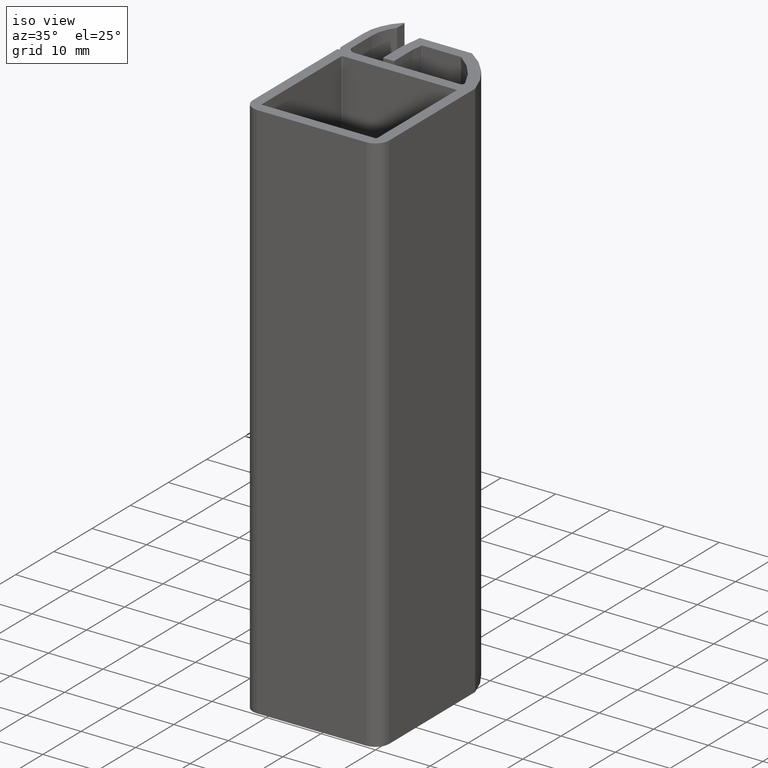
[diagram: clean part render]
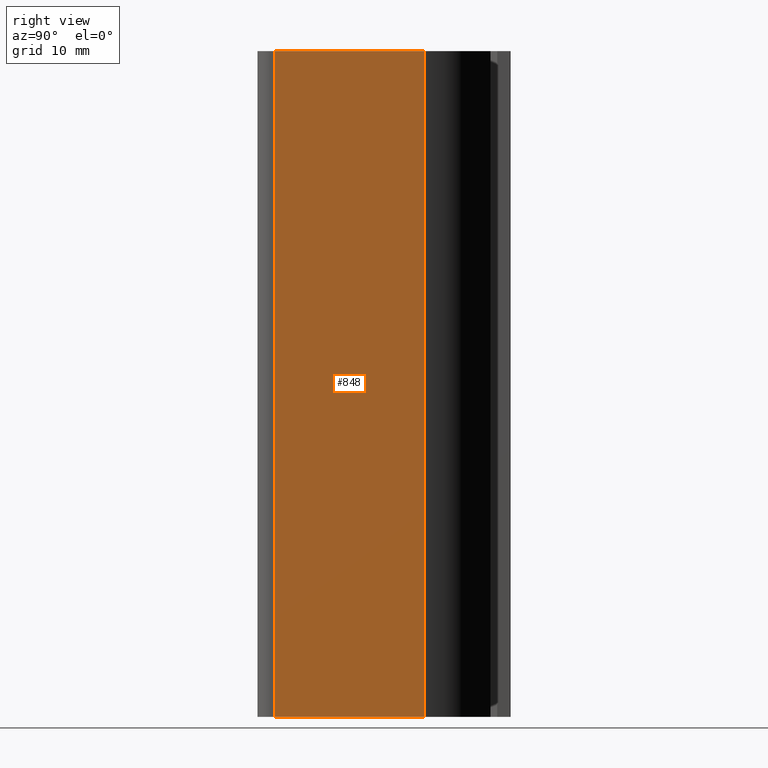
[diagram: tour spotlight — one face highlighted and labeled with its STEP entity id]
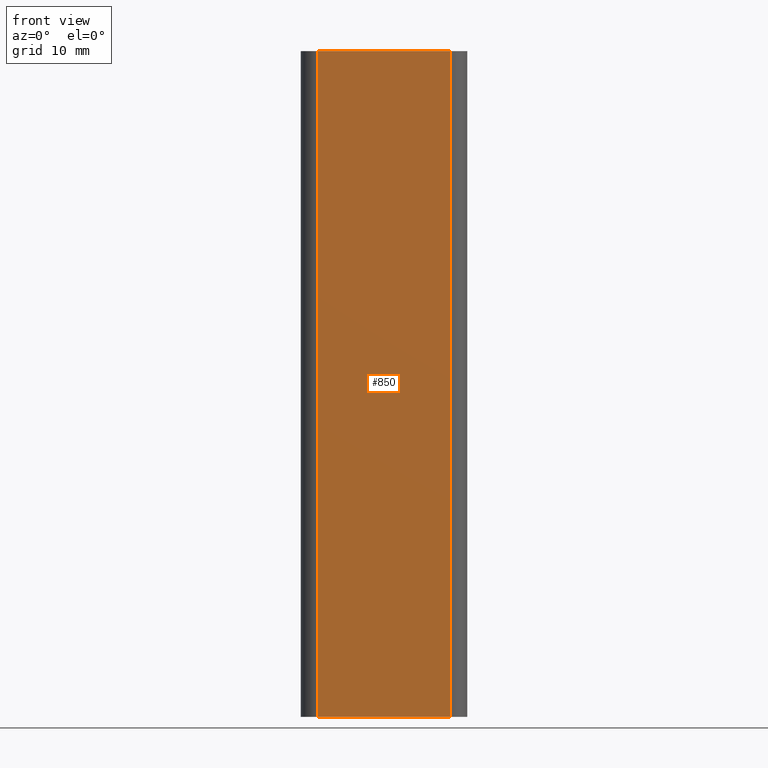
[diagram: tour spotlight — one face highlighted and labeled with its STEP entity id]
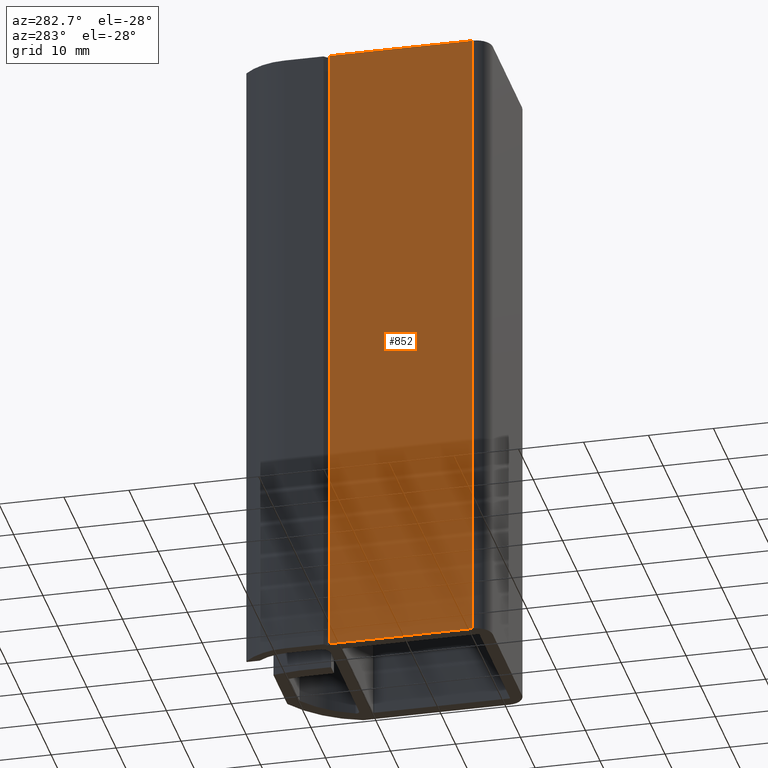
[diagram: tour spotlight — one face highlighted and labeled with its STEP entity id]
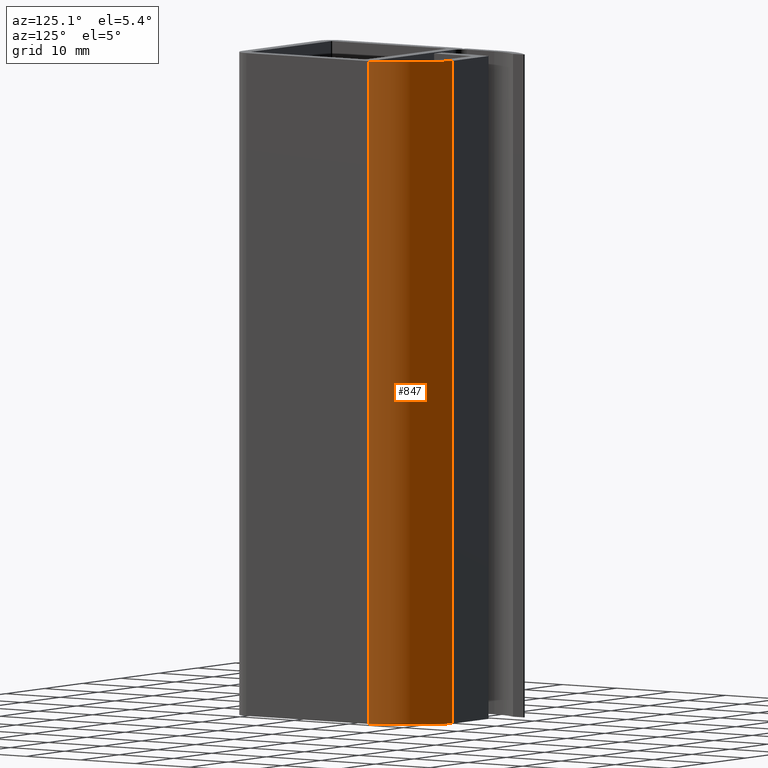
[diagram: tour spotlight — one face highlighted and labeled with its STEP entity id]
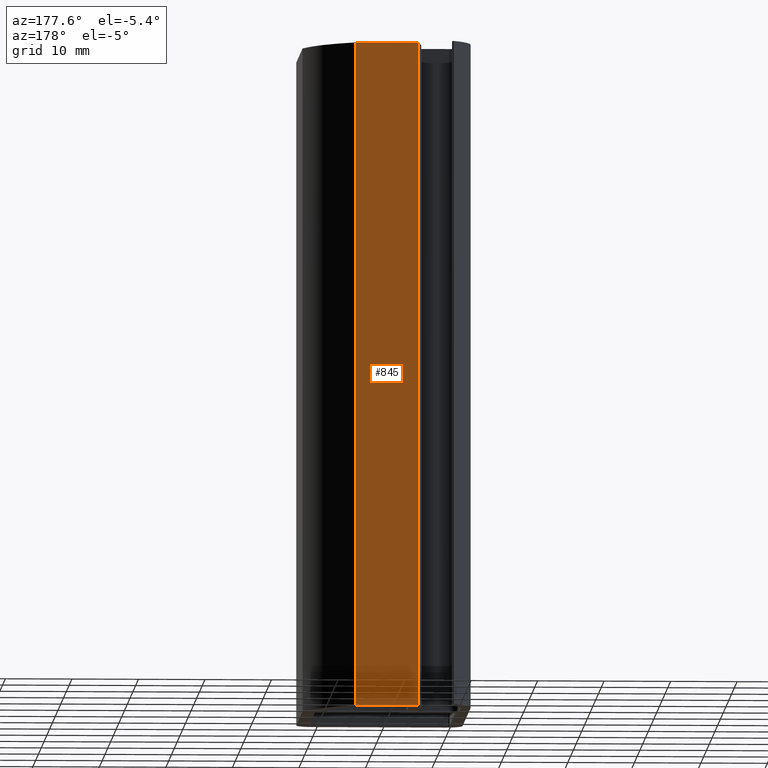
[diagram: tour spotlight — one face highlighted and labeled with its STEP entity id]
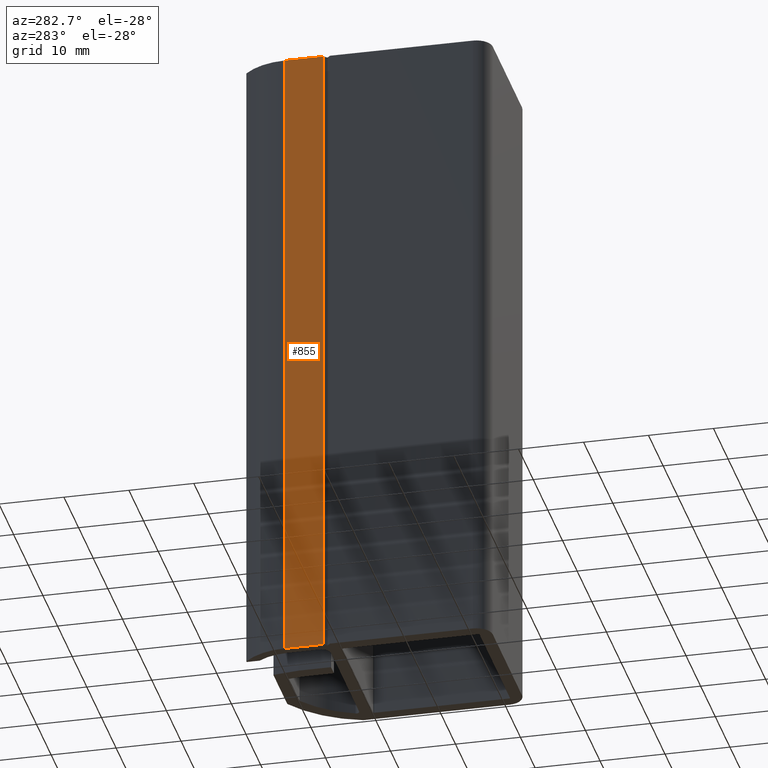
[diagram: tour spotlight — one face highlighted and labeled with its STEP entity id]
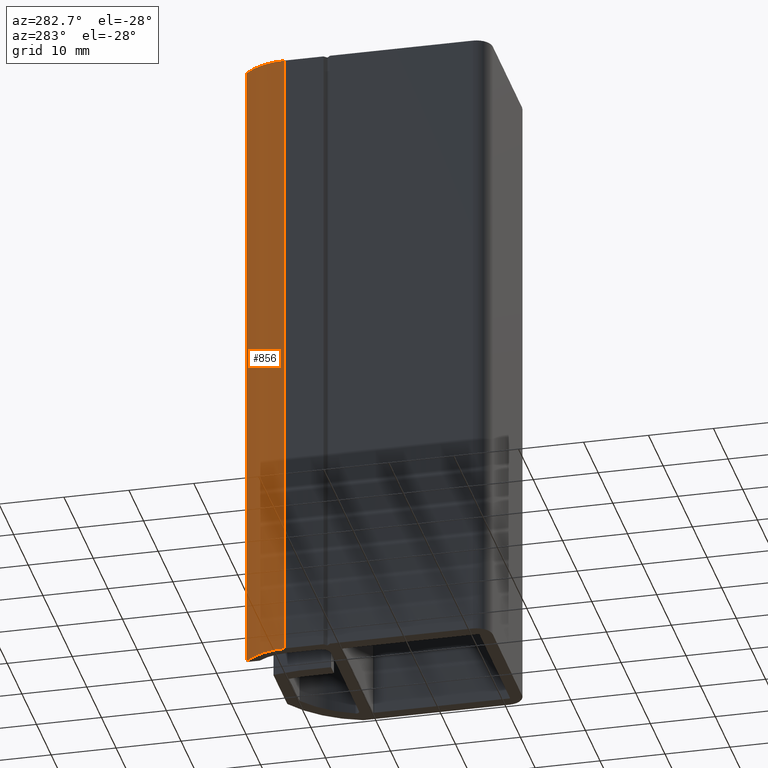
[diagram: tour spotlight — one face highlighted and labeled with its STEP entity id]
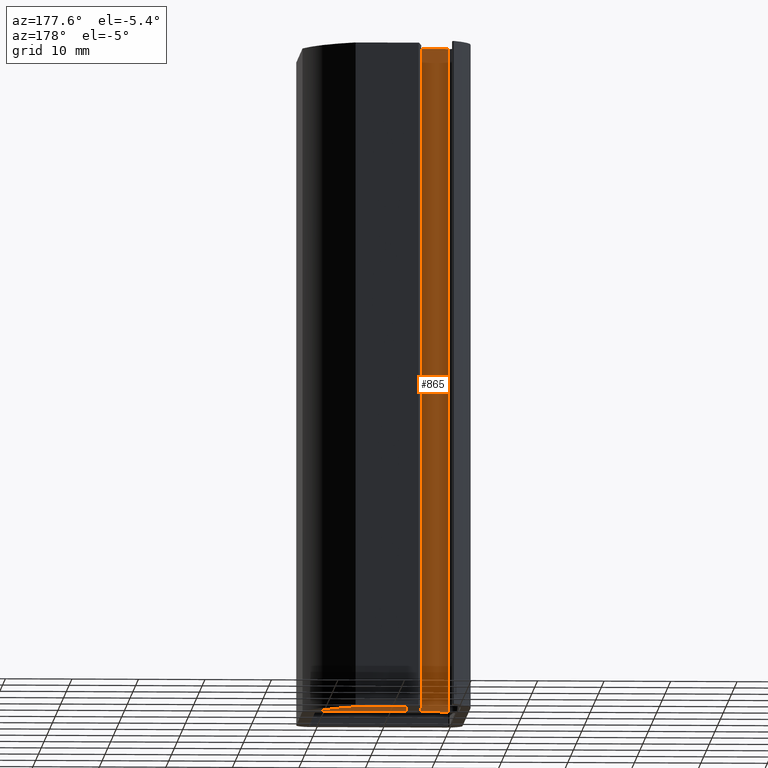
[diagram: tour spotlight — one face highlighted and labeled with its STEP entity id]
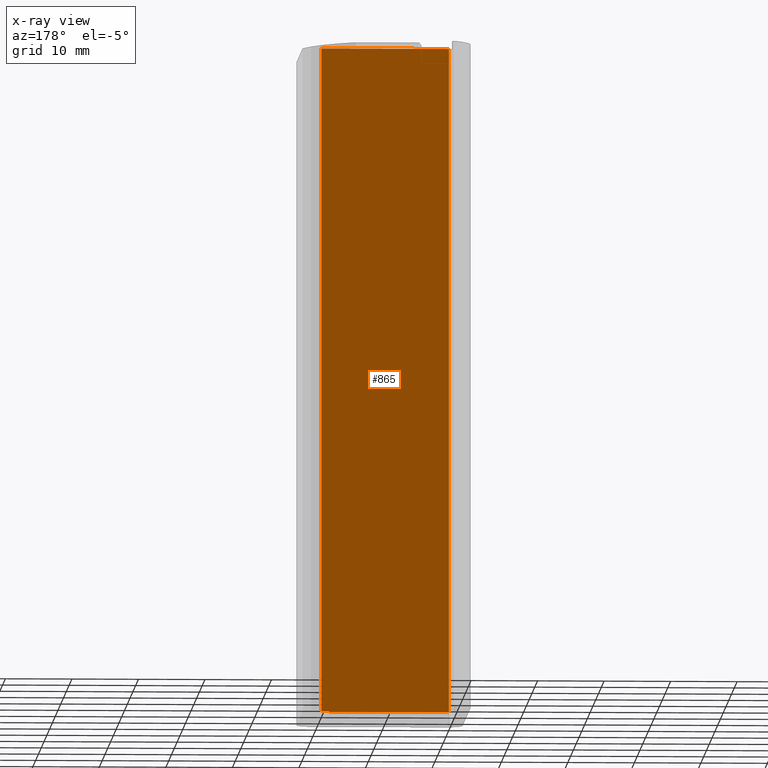
[diagram: x-ray of the same camera — body ghosted, this tour face saturated]
A machine part: a face-by-face anatomy tour. The part has 44 B-rep faces; the first image is the clean iso view, then the 8 largest visible faces are spotlighted one at a time (largest first), each with its STEP entity span.

Face 1 — right view, entity #848. In plain terms, the highlighted planar face has unit normal (1, -0, 0).
Definition (entity closure, byte-faithful):
#29=PLANE('',#946);
#65=FACE_OUTER_BOUND('',#110,.T.);
#110=EDGE_LOOP('',(#688,#689,#690,#691));
#196=LINE('',#1317,#280);
#228=LINE('',#1414,#312);
#229=LINE('',#1417,#313);
#230=LINE('',#1418,#314);
#280=VECTOR('',#1051,10.);
#312=VECTOR('',#1149,10.);
#313=VECTOR('',#1152,10.);
#314=VECTOR('',#1153,10.);
#373=VERTEX_POINT('',#1314);
#374=VERTEX_POINT('',#1316);
#406=VERTEX_POINT('',#1412);
#407=VERTEX_POINT('',#1416);
#465=EDGE_CURVE('',#373,#374,#196,.T.);
#514=EDGE_CURVE('',#373,#406,#228,.T.);
#515=EDGE_CURVE('',#407,#406,#229,.T.);
#516=EDGE_CURVE('',#374,#407,#230,.T.);
#688=ORIENTED_EDGE('',*,*,#514,.T.);
#689=ORIENTED_EDGE('',*,*,#515,.F.);
#690=ORIENTED_EDGE('',*,*,#516,.F.);
#691=ORIENTED_EDGE('',*,*,#465,.F.);
#848=ADVANCED_FACE('',(#65),#29,.T.);
#946=AXIS2_PLACEMENT_3D('',#1415,#1150,#1151);
#1051=DIRECTION('',(-3.05928122341138E-15,-1.,0.));
#1149=DIRECTION('',(0.,0.,1.));
#1150=DIRECTION('center_axis',(1.,-3.05928122341138E-15,0.));
#1151=DIRECTION('ref_axis',(3.05928122341138E-15,1.,0.));
#1152=DIRECTION('',(3.05928122341138E-15,1.,0.));
#1153=DIRECTION('',(0.,0.,1.));
#1314=CARTESIAN_POINT('',(12.4999999999993,12.4999999999999,-50.));
#1316=CARTESIAN_POINT('',(12.4999999999992,-10.0000000000013,-50.));
#1317=CARTESIAN_POINT('',(12.4999999999992,-10.0000000000013,-50.));
#1412=CARTESIAN_POINT('',(12.4999999999993,12.4999999999999,50.));
#1414=CARTESIAN_POINT('',(12.4999999999993,12.4999999999999,0.));
#1415=CARTESIAN_POINT('Origin',(12.4999999999992,-10.0000000000013,0.));
#1416=CARTESIAN_POINT('',(12.4999999999992,-10.0000000000013,50.));
#1417=CARTESIAN_POINT('',(12.4999999999992,-10.0000000000013,50.));
#1418=CARTESIAN_POINT('',(12.4999999999992,-10.0000000000013,0.));

Face 2 — front view, entity #850. In plain terms, the highlighted planar face has unit normal (-0, -1, 0).
Definition (entity closure, byte-faithful):
#30=PLANE('',#949);
#67=FACE_OUTER_BOUND('',#112,.T.);
#112=EDGE_LOOP('',(#696,#697,#698,#699));
#197=LINE('',#1321,#281);
#231=LINE('',#1422,#315);
#232=LINE('',#1425,#316);
#233=LINE('',#1426,#317);
#281=VECTOR('',#1054,10.);
#315=VECTOR('',#1158,10.);
#316=VECTOR('',#1161,10.);
#317=VECTOR('',#1162,10.);
#375=VERTEX_POINT('',#1318);
#376=VERTEX_POINT('',#1320);
#408=VERTEX_POINT('',#1420);
#409=VERTEX_POINT('',#1424);
#467=EDGE_CURVE('',#375,#376,#197,.T.);
#518=EDGE_CURVE('',#375,#408,#231,.T.);
#519=EDGE_CURVE('',#409,#408,#232,.T.);
#520=EDGE_CURVE('',#376,#409,#233,.T.);
#696=ORIENTED_EDGE('',*,*,#518,.T.);
#697=ORIENTED_EDGE('',*,*,#519,.F.);
#698=ORIENTED_EDGE('',*,*,#520,.F.);
#699=ORIENTED_EDGE('',*,*,#467,.F.);
#850=ADVANCED_FACE('',(#67),#30,.T.);
#949=AXIS2_PLACEMENT_3D('',#1423,#1159,#1160);
#1054=DIRECTION('',(-1.,3.10862446895064E-15,0.));
#1158=DIRECTION('',(0.,0.,1.));
#1159=DIRECTION('center_axis',(-3.10862446895064E-15,-1.,0.));
#1160=DIRECTION('ref_axis',(1.,-3.10862446895064E-15,0.));
#1161=DIRECTION('',(1.,-3.10862446895064E-15,0.));
#1162=DIRECTION('',(0.,0.,1.));
#1318=CARTESIAN_POINT('',(9.9999999999992,-12.5000000000013,-50.));
#1320=CARTESIAN_POINT('',(-9.99999999999947,-12.5000000000013,-50.));
#1321=CARTESIAN_POINT('',(-9.99999999999947,-12.5000000000013,-50.));
#1420=CARTESIAN_POINT('',(9.9999999999992,-12.5000000000013,50.));
#1422=CARTESIAN_POINT('',(9.9999999999992,-12.5000000000013,0.));
#1423=CARTESIAN_POINT('Origin',(-9.99999999999947,-12.5000000000013,0.));
#1424=CARTESIAN_POINT('',(-9.99999999999947,-12.5000000000013,50.));
#1425=CARTESIAN_POINT('',(-9.99999999999947,-12.5000000000013,50.));
#1426=CARTESIAN_POINT('',(-9.99999999999947,-12.5000000000013,0.));

Face 3 — auxiliary view, entity #852. In plain terms, the highlighted planar face has unit normal (-1, 0, 0).
Definition (entity closure, byte-faithful):
#31=PLANE('',#952);
#69=FACE_OUTER_BOUND('',#114,.T.);
#114=EDGE_LOOP('',(#704,#705,#706,#707));
#198=LINE('',#1325,#282);
#234=LINE('',#1430,#318);
#235=LINE('',#1433,#319);
#236=LINE('',#1434,#320);
#282=VECTOR('',#1057,10.);
#318=VECTOR('',#1167,10.);
#319=VECTOR('',#1170,10.);
#320=VECTOR('',#1171,10.);
#377=VERTEX_POINT('',#1322);
#378=VERTEX_POINT('',#1324);
#410=VERTEX_POINT('',#1428);
#411=VERTEX_POINT('',#1432);
#469=EDGE_CURVE('',#377,#378,#198,.T.);
#522=EDGE_CURVE('',#377,#410,#234,.T.);
#523=EDGE_CURVE('',#411,#410,#235,.T.);
#524=EDGE_CURVE('',#378,#411,#236,.T.);
#704=ORIENTED_EDGE('',*,*,#522,.T.);
#705=ORIENTED_EDGE('',*,*,#523,.F.);
#706=ORIENTED_EDGE('',*,*,#524,.F.);
#707=ORIENTED_EDGE('',*,*,#469,.F.);
#852=ADVANCED_FACE('',(#69),#31,.T.);
#952=AXIS2_PLACEMENT_3D('',#1431,#1168,#1169);
#1057=DIRECTION('',(3.02788097625209E-15,1.,0.));
#1167=DIRECTION('',(0.,0.,1.));
#1168=DIRECTION('center_axis',(-1.,3.02788097625209E-15,0.));
#1169=DIRECTION('ref_axis',(-3.02788097625209E-15,-1.,0.));
#1170=DIRECTION('',(-3.02788097625209E-15,-1.,0.));
#1171=DIRECTION('',(0.,0.,1.));
#1322=CARTESIAN_POINT('',(-12.4999999999995,-10.0000000000013,-50.));
#1324=CARTESIAN_POINT('',(-12.4999999999994,11.9999999999866,-50.));
#1325=CARTESIAN_POINT('',(-12.4999999999994,11.9999999999866,-50.));
#1428=CARTESIAN_POINT('',(-12.4999999999995,-10.0000000000013,50.));
#1430=CARTESIAN_POINT('',(-12.4999999999995,-10.0000000000013,0.));
#1431=CARTESIAN_POINT('Origin',(-12.4999999999994,11.9999999999866,0.));
#1432=CARTESIAN_POINT('',(-12.4999999999994,11.9999999999866,50.));
#1433=CARTESIAN_POINT('',(-12.4999999999994,11.9999999999866,50.));
#1434=CARTESIAN_POINT('',(-12.4999999999994,11.9999999999866,0.));

Face 4 — auxiliary view, entity #847. In plain terms, the highlighted cylindrical surface (partial cylindrical patch) has radius 17.72 mm, axis along (0, 0, 1).
Definition (entity closure, byte-faithful):
#64=FACE_OUTER_BOUND('',#109,.T.);
#109=EDGE_LOOP('',(#684,#685,#686,#687));
#146=CIRCLE('',#912,17.7200451466634);
#163=CIRCLE('',#945,17.7200451466634);
#227=LINE('',#1410,#311);
#228=LINE('',#1414,#312);
#311=VECTOR('',#1144,10.);
#312=VECTOR('',#1149,10.);
#372=VERTEX_POINT('',#1312);
#373=VERTEX_POINT('',#1314);
#405=VERTEX_POINT('',#1408);
#406=VERTEX_POINT('',#1412);
#464=EDGE_CURVE('',#372,#373,#146,.T.);
#512=EDGE_CURVE('',#372,#405,#227,.T.);
#513=EDGE_CURVE('',#406,#405,#163,.T.);
#514=EDGE_CURVE('',#373,#406,#228,.T.);
#684=ORIENTED_EDGE('',*,*,#512,.T.);
#685=ORIENTED_EDGE('',*,*,#513,.F.);
#686=ORIENTED_EDGE('',*,*,#514,.F.);
#687=ORIENTED_EDGE('',*,*,#464,.F.);
#814=CYLINDRICAL_SURFACE('',#944,17.7200451466634);
#847=ADVANCED_FACE('',(#64),#814,.T.);
#912=AXIS2_PLACEMENT_3D('',#1315,#1049,#1050);
#944=AXIS2_PLACEMENT_3D('',#1411,#1145,#1146);
#945=AXIS2_PLACEMENT_3D('',#1413,#1147,#1148);
#1049=DIRECTION('center_axis',(0.,0.,-1.));
#1050=DIRECTION('ref_axis',(0.959365501571754,0.282166323989905,0.));
#1144=DIRECTION('',(0.,0.,1.));
#1145=DIRECTION('center_axis',(0.,0.,1.));
#1146=DIRECTION('ref_axis',(0.959365501571754,0.282166323989905,0.));
#1147=DIRECTION('center_axis',(0.,0.,1.));
#1148=DIRECTION('ref_axis',(0.959365501571754,0.282166323989905,0.));
#1149=DIRECTION('',(0.,0.,1.));
#1312=CARTESIAN_POINT('',(4.9584818176703,22.4845627799243,-50.));
#1314=CARTESIAN_POINT('',(12.4999999999993,12.4999999999999,-50.));
#1315=CARTESIAN_POINT('Origin',(-4.50000000000929,7.50000000002902,-50.));
#1408=CARTESIAN_POINT('',(4.9584818176703,22.4845627799243,50.));
#1410=CARTESIAN_POINT('',(4.9584818176703,22.4845627799243,0.));
#1411=CARTESIAN_POINT('Origin',(-4.50000000000929,7.50000000002902,0.));
#1412=CARTESIAN_POINT('',(12.4999999999993,12.4999999999999,50.));
#1413=CARTESIAN_POINT('Origin',(-4.50000000000929,7.50000000002902,50.));
#1414=CARTESIAN_POINT('',(12.4999999999993,12.4999999999999,0.));

Face 5 — auxiliary view, entity #845. In plain terms, the highlighted planar face has unit normal (-0, 1, 0).
Definition (entity closure, byte-faithful):
#28=PLANE('',#941);
#62=FACE_OUTER_BOUND('',#107,.T.);
#107=EDGE_LOOP('',(#676,#677,#678,#679));
#195=LINE('',#1311,#279);
#224=LINE('',#1402,#308);
#225=LINE('',#1405,#309);
#226=LINE('',#1406,#310);
#279=VECTOR('',#1046,10.);
#308=VECTOR('',#1135,10.);
#309=VECTOR('',#1138,10.);
#310=VECTOR('',#1139,10.);
#370=VERTEX_POINT('',#1308);
#371=VERTEX_POINT('',#1310);
#403=VERTEX_POINT('',#1400);
#404=VERTEX_POINT('',#1404);
#462=EDGE_CURVE('',#370,#371,#195,.T.);
#508=EDGE_CURVE('',#370,#403,#224,.T.);
#509=EDGE_CURVE('',#404,#403,#225,.T.);
#510=EDGE_CURVE('',#371,#404,#226,.T.);
#676=ORIENTED_EDGE('',*,*,#508,.T.);
#677=ORIENTED_EDGE('',*,*,#509,.F.);
#678=ORIENTED_EDGE('',*,*,#510,.F.);
#679=ORIENTED_EDGE('',*,*,#462,.F.);
#845=ADVANCED_FACE('',(#62),#28,.T.);
#941=AXIS2_PLACEMENT_3D('',#1403,#1136,#1137);
#1046=DIRECTION('',(1.,2.44755815356005E-13,0.));
#1135=DIRECTION('',(0.,0.,1.));
#1136=DIRECTION('center_axis',(-2.44755815356005E-13,1.,0.));
#1137=DIRECTION('ref_axis',(-1.,-2.44755815356005E-13,0.));
#1138=DIRECTION('',(-1.,-2.44755815356005E-13,0.));
#1139=DIRECTION('',(0.,0.,1.));
#1308=CARTESIAN_POINT('',(-4.51172178322819,22.4999999999976,-50.));
#1310=CARTESIAN_POINT('',(4.90510451676959,22.4999999999999,-50.));
#1311=CARTESIAN_POINT('',(4.90510451676959,22.4999999999999,-50.));
#1400=CARTESIAN_POINT('',(-4.51172178322819,22.4999999999976,50.));
#1402=CARTESIAN_POINT('',(-4.51172178322819,22.4999999999976,0.));
#1403=CARTESIAN_POINT('Origin',(4.90510451676959,22.4999999999999,0.));
#1404=CARTESIAN_POINT('',(4.90510451676959,22.4999999999999,50.));
#1405=CARTESIAN_POINT('',(4.90510451676959,22.4999999999999,50.));
#1406=CARTESIAN_POINT('',(4.90510451676959,22.4999999999999,0.));

Face 6 — auxiliary view, entity #855. In plain terms, the highlighted planar face has unit normal (-1, 0, 0).
Definition (entity closure, byte-faithful):
#34=PLANE('',#955);
#72=FACE_OUTER_BOUND('',#117,.T.);
#117=EDGE_LOOP('',(#716,#717,#718,#719));
#201=LINE('',#1331,#285);
#240=LINE('',#1442,#324);
#241=LINE('',#1445,#325);
#242=LINE('',#1446,#326);
#285=VECTOR('',#1060,10.);
#324=VECTOR('',#1179,10.);
#325=VECTOR('',#1182,10.);
#326=VECTOR('',#1183,10.);
#380=VERTEX_POINT('',#1328);
#381=VERTEX_POINT('',#1330);
#413=VERTEX_POINT('',#1440);
#414=VERTEX_POINT('',#1444);
#472=EDGE_CURVE('',#380,#381,#201,.T.);
#528=EDGE_CURVE('',#380,#413,#240,.T.);
#529=EDGE_CURVE('',#414,#413,#241,.T.);
#530=EDGE_CURVE('',#381,#414,#242,.T.);
#716=ORIENTED_EDGE('',*,*,#528,.T.);
#717=ORIENTED_EDGE('',*,*,#529,.F.);
#718=ORIENTED_EDGE('',*,*,#530,.F.);
#719=ORIENTED_EDGE('',*,*,#472,.F.);
#855=ADVANCED_FACE('',(#72),#34,.T.);
#955=AXIS2_PLACEMENT_3D('',#1443,#1180,#1181);
#1060=DIRECTION('',(2.96059473232633E-15,1.,0.));
#1179=DIRECTION('',(0.,0.,1.));
#1180=DIRECTION('center_axis',(-1.,2.96059473232633E-15,0.));
#1181=DIRECTION('ref_axis',(-2.96059473232633E-15,-1.,0.));
#1182=DIRECTION('',(-2.96059473232633E-15,-1.,0.));
#1183=DIRECTION('',(0.,0.,1.));
#1328=CARTESIAN_POINT('',(-12.4999999999994,12.9999999999849,-50.));
#1330=CARTESIAN_POINT('',(-12.4999999999994,19.,-50.));
#1331=CARTESIAN_POINT('',(-12.4999999999994,19.,-50.));
#1440=CARTESIAN_POINT('',(-12.4999999999994,12.9999999999849,50.));
#1442=CARTESIAN_POINT('',(-12.4999999999994,12.9999999999849,0.));
#1443=CARTESIAN_POINT('Origin',(-12.4999999999994,19.,0.));
#1444=CARTESIAN_POINT('',(-12.4999999999994,19.,50.));
#1445=CARTESIAN_POINT('',(-12.4999999999994,19.,50.));
#1446=CARTESIAN_POINT('',(-12.4999999999994,19.,0.));

Face 7 — auxiliary view, entity #856. In plain terms, the highlighted cylindrical surface (partial cylindrical patch) has radius 9 mm, axis along (0, 0, 1).
Definition (entity closure, byte-faithful):
#73=FACE_OUTER_BOUND('',#118,.T.);
#118=EDGE_LOOP('',(#720,#721,#722,#723));
#149=CIRCLE('',#915,8.99999999999988);
#166=CIRCLE('',#957,8.99999999999988);
#242=LINE('',#1446,#326);
#243=LINE('',#1450,#327);
#326=VECTOR('',#1183,10.);
#327=VECTOR('',#1188,10.);
#381=VERTEX_POINT('',#1330);
#382=VERTEX_POINT('',#1332);
#414=VERTEX_POINT('',#1444);
#415=VERTEX_POINT('',#1448);
#473=EDGE_CURVE('',#381,#382,#149,.T.);
#530=EDGE_CURVE('',#381,#414,#242,.T.);
#531=EDGE_CURVE('',#415,#414,#166,.T.);
#532=EDGE_CURVE('',#382,#415,#243,.T.);
#720=ORIENTED_EDGE('',*,*,#530,.T.);
#721=ORIENTED_EDGE('',*,*,#531,.F.);
#722=ORIENTED_EDGE('',*,*,#532,.F.);
#723=ORIENTED_EDGE('',*,*,#473,.F.);
#817=CYLINDRICAL_SURFACE('',#956,8.99999999999988);
#856=ADVANCED_FACE('',(#73),#817,.T.);
#915=AXIS2_PLACEMENT_3D('',#1333,#1061,#1062);
#956=AXIS2_PLACEMENT_3D('',#1447,#1184,#1185);
#957=AXIS2_PLACEMENT_3D('',#1449,#1186,#1187);
#1061=DIRECTION('center_axis',(0.,0.,-1.));
#1062=DIRECTION('ref_axis',(-0.694905442519964,0.719101123595376,0.));
#1183=DIRECTION('',(0.,0.,1.));
#1184=DIRECTION('center_axis',(0.,0.,1.));
#1185=DIRECTION('ref_axis',(-0.694905442519964,0.719101123595376,0.));
#1186=DIRECTION('center_axis',(0.,0.,1.));
#1187=DIRECTION('ref_axis',(-0.694905442519964,0.719101123595376,0.));
#1188=DIRECTION('',(0.,0.,1.));
#1330=CARTESIAN_POINT('',(-12.4999999999994,19.,-50.));
#1332=CARTESIAN_POINT('',(-9.75414898267922,25.4719101123579,-50.));
#1333=CARTESIAN_POINT('Origin',(-3.49999999999994,18.9999999999999,-50.));
#1444=CARTESIAN_POINT('',(-12.4999999999994,19.,50.));
#1446=CARTESIAN_POINT('',(-12.4999999999994,19.,0.));
#1447=CARTESIAN_POINT('Origin',(-3.49999999999994,18.9999999999999,0.));
#1448=CARTESIAN_POINT('',(-9.75414898267922,25.4719101123579,50.));
#1449=CARTESIAN_POINT('Origin',(-3.49999999999994,18.9999999999999,50.));
#1450=CARTESIAN_POINT('',(-9.75414898267922,25.4719101123579,0.));

Face 8 — auxiliary view, entity #865. An x-ray twin of the same camera follows (body ghosted, this face saturated) — the face is partly hidden behind the body. In plain terms, the highlighted planar face has unit normal (0, 1, 0).
Definition (entity closure, byte-faithful):
#38=PLANE('',#971);
#82=FACE_OUTER_BOUND('',#127,.T.);
#127=EDGE_LOOP('',(#756,#757,#758,#759));
#188=LINE('',#1283,#272);
#205=LINE('',#1351,#289);
#254=LINE('',#1482,#338);
#255=LINE('',#1484,#339);
#272=VECTOR('',#1025,10.);
#289=VECTOR('',#1078,10.);
#338=VECTOR('',#1225,10.);
#339=VECTOR('',#1228,10.);
#356=VERTEX_POINT('',#1281);
#357=VERTEX_POINT('',#1282);
#390=VERTEX_POINT('',#1350);
#423=VERTEX_POINT('',#1480);
#448=EDGE_CURVE('',#356,#357,#188,.T.);
#482=EDGE_CURVE('',#390,#357,#205,.T.);
#548=EDGE_CURVE('',#356,#423,#254,.T.);
#549=EDGE_CURVE('',#390,#423,#255,.T.);
#756=ORIENTED_EDGE('',*,*,#548,.T.);
#757=ORIENTED_EDGE('',*,*,#549,.F.);
#758=ORIENTED_EDGE('',*,*,#482,.T.);
#759=ORIENTED_EDGE('',*,*,#448,.F.);
#865=ADVANCED_FACE('',(#82),#38,.T.);
#971=AXIS2_PLACEMENT_3D('',#1483,#1226,#1227);
#1025=DIRECTION('',(1.,-3.12387890681712E-15,0.));
#1078=DIRECTION('',(0.,0.,-1.));
#1225=DIRECTION('',(0.,0.,1.));
#1226=DIRECTION('center_axis',(3.12387890681712E-15,1.,0.));
#1227=DIRECTION('ref_axis',(-1.,3.12387890681712E-15,0.));
#1228=DIRECTION('',(-1.,3.12387890681712E-15,0.));
#1281=CARTESIAN_POINT('',(-9.49999999999995,12.4999999999987,-50.));
#1282=CARTESIAN_POINT('',(9.69153882659394,12.4999999999987,-50.));
#1283=CARTESIAN_POINT('',(9.69153882659394,12.4999999999987,-50.));
#1350=CARTESIAN_POINT('',(9.69153882659394,12.4999999999987,50.));
#1351=CARTESIAN_POINT('',(9.69153882659394,12.4999999999987,0.));
#1480=CARTESIAN_POINT('',(-9.49999999999995,12.4999999999987,50.));
#1482=CARTESIAN_POINT('',(-9.49999999999995,12.4999999999987,0.));
#1483=CARTESIAN_POINT('Origin',(9.69153882659394,12.4999999999987,0.));
#1484=CARTESIAN_POINT('',(9.69153882659394,12.4999999999987,50.));